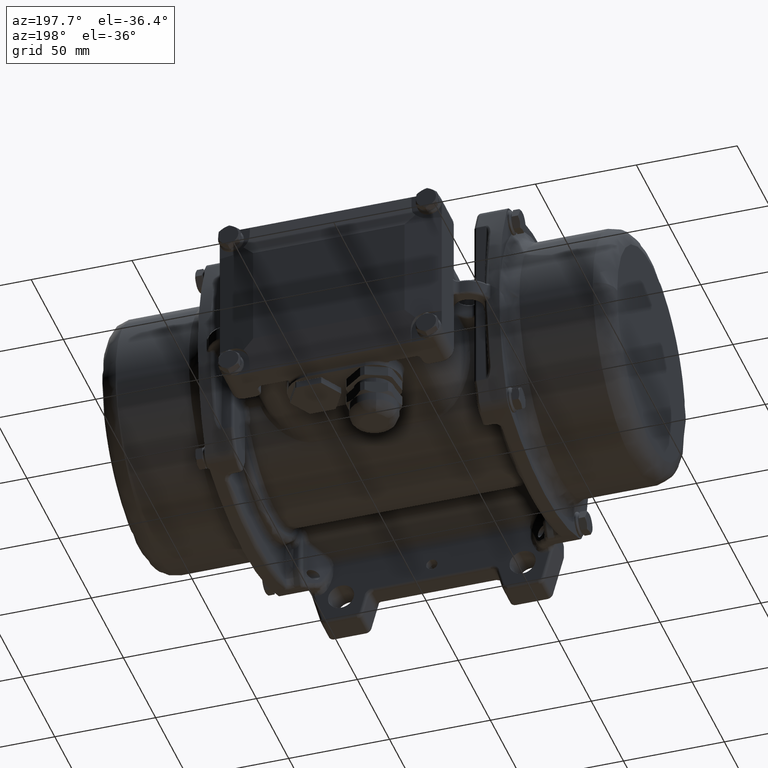
[diagram: clean part render]
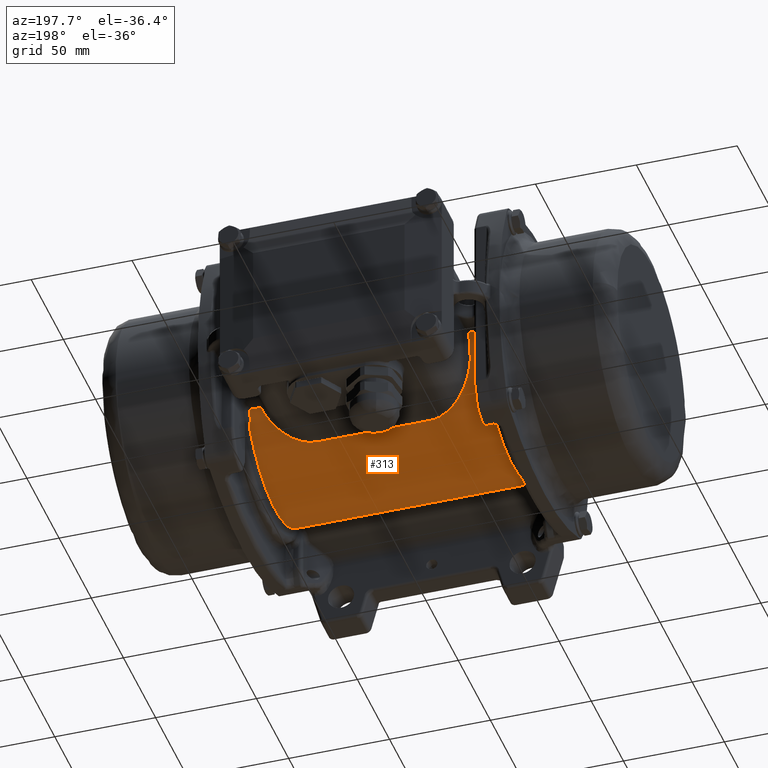
[diagram: same view with one face highlighted and labeled with its STEP entity id]
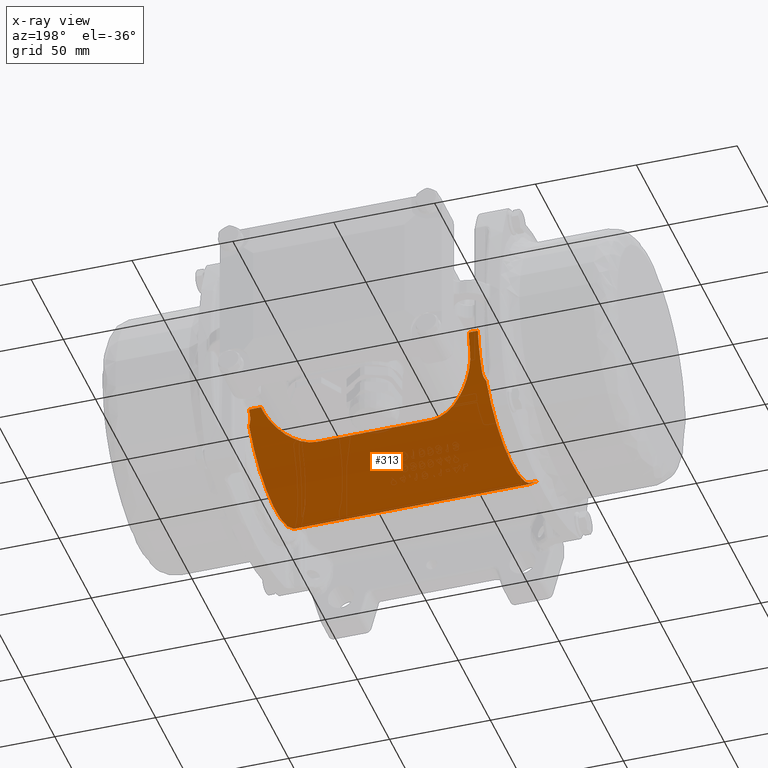
[diagram: x-ray of the same camera — body ghosted, the highlighted face saturated]
A machine part, auxiliary view. The second image highlights one B-rep face of the part: STEP entity #313.
The next image is the same camera in x-ray: the body ghosted, the highlighted face saturated — about 0% of this face is hidden behind the body in this view.
In plain terms, the highlighted cylindrical surface (partial cylindrical patch) has radius 50 mm, axis along (-1, -0, -0).
Its self-contained STEP definition (entity closure, byte-faithful):
#183 = LINE ( 'NONE', #10173, #23171 ) ;
#313 = ADVANCED_FACE ( 'NONE', ( #22295 ), #58801, .T. ) ;
#795 = DIRECTION ( 'NONE',  ( 1.000000000000000000, 0.0000000000000000000, 0.0000000000000000000 ) ) ;
#1679 = CARTESIAN_POINT ( 'NONE',  ( -57.50000000000000700, 49.66604450055753300, -5.769230769230772700 ) ) ;
#2043 = CARTESIAN_POINT ( 'NONE',  ( 57.98832778878339400, 41.55330244159840400, -27.80886954772060400 ) ) ;
#2391 = CARTESIAN_POINT ( 'NONE',  ( -49.46786750420213300, 41.93590435806842700, -27.23318097484833800 ) ) ;
#2492 = DIRECTION ( 'NONE',  ( -1.000000000000000000, -0.0000000000000000000, -0.0000000000000000000 ) ) ;
#2555 = CARTESIAN_POINT ( 'NONE',  ( 57.77486480801098900, 41.96190183794158900, -27.18821396839150100 ) ) ;
#2578 = CARTESIAN_POINT ( 'NONE',  ( 42.25572498046247500, 36.04537702610515700, -34.65177171619174600 ) ) ;
#2665 = CARTESIAN_POINT ( 'NONE',  ( -42.31203734573393400, 36.08195555731531800, -34.61350640377278900 ) ) ;
#2822 = AXIS2_PLACEMENT_3D ( 'NONE', #6173, #24974, #24453 ) ;
#2930 = CARTESIAN_POINT ( 'NONE',  ( -38.02890577499714200, 33.71452270929490400, -36.92331252349004000 ) ) ;
#2978 = EDGE_CURVE ( 'NONE', #66755, #75228, #22992, .T. ) ;
#3126 = CARTESIAN_POINT ( 'NONE',  ( 31.86123097744347600, 31.71528600929236700, -38.65412520567613100 ) ) ;
#3203 = CARTESIAN_POINT ( 'NONE',  ( -33.25851904756403600, 32.01705362535990700, -38.40453545580753300 ) ) ;
#3238 = ORIENTED_EDGE ( 'NONE', *, *, #49634, .T. ) ;
#3393 = CARTESIAN_POINT ( 'NONE',  ( 48.87115605684894600, 41.32704453535111400, -28.15050479908513000 ) ) ;
#3650 = CARTESIAN_POINT ( 'NONE',  ( 45.26726100031910200, 38.17728374424188300, -32.28797935197447800 ) ) ;
#6173 = CARTESIAN_POINT ( 'NONE',  ( -52.99999999999999300, 0.0000000000000000000, 0.0000000000000000000 ) ) ;
#6582 = EDGE_CURVE ( 'NONE', #34324, #70857, #14754, .T. ) ;
#6701 = AXIS2_PLACEMENT_3D ( 'NONE', #8337, #49310, #67603 ) ;
#7080 = CARTESIAN_POINT ( 'NONE',  ( 27.99999999999999600, 31.36075049480852100, -38.94230769230769300 ) ) ;
#7393 = CARTESIAN_POINT ( 'NONE',  ( -58.18527897298220400, 41.26899098580580000, -28.22889566169332900 ) ) ;
#8311 = DIRECTION ( 'NONE',  ( 0.0000000000000000000, 8.881784197001252300E-016, 1.000000000000000000 ) ) ;
#8337 = CARTESIAN_POINT ( 'NONE',  ( -84.50000000000000000, 0.0000000000000000000, 0.0000000000000000000 ) ) ;
#8559 = CARTESIAN_POINT ( 'NONE',  ( -46.21794945096287000, 38.93740409311075000, -31.36768992570225500 ) ) ;
#8742 = CARTESIAN_POINT ( 'NONE',  ( 50.73750674432394400, 43.33576273029007800, -24.97332283799776000 ) ) ;
#8824 = CARTESIAN_POINT ( 'NONE',  ( -40.81004302895662100, 35.15209734466473200, -35.56143989443409500 ) ) ;
#9013 = EDGE_CURVE ( 'NONE', #34252, #76262, #43497, .T. ) ;
#9115 = CARTESIAN_POINT ( 'NONE',  ( -37.99622003739911200, 33.69947203134882600, -36.93704973869088800 ) ) ;
#9305 = CARTESIAN_POINT ( 'NONE',  ( 33.48511667407661500, 32.06449937020436600, -38.36573593299953400 ) ) ;
#9387 = CARTESIAN_POINT ( 'NONE',  ( -47.06276071629821400, 39.65160521683277800, -30.46115813465050000 ) ) ;
#9571 = CARTESIAN_POINT ( 'NONE',  ( 49.99100951707188800, 42.50092780296466800, -26.33775326314511400 ) ) ;
#9836 = CARTESIAN_POINT ( 'NONE',  ( 50.06524923584071700, 42.58307617346383700, -26.20472733435900600 ) ) ;
#10035 = ORIENTED_EDGE ( 'NONE', *, *, #6582, .T. ) ;
#10173 = CARTESIAN_POINT ( 'NONE',  ( -84.50000000000000000, 31.36075049480852800, -38.94230769230768600 ) ) ;
#10599 = EDGE_CURVE ( 'NONE', #75228, #11653, #20384, .T. ) ;
#11653 = VERTEX_POINT ( 'NONE', #1679 ) ;
#12001 = CARTESIAN_POINT ( 'NONE',  ( 57.52318247902827200, 42.81887052015578400, -25.82092348278470300 ) ) ;
#12045 = EDGE_CURVE ( 'NONE', #24924, #20197, #26387, .T. ) ;
#13062 = CARTESIAN_POINT ( 'NONE',  ( -58.25394254713696500, 41.18204375646782700, -28.35566556223257700 ) ) ;
#13733 = DIRECTION ( 'NONE',  ( 1.000000000000000000, 0.0000000000000000000, 0.0000000000000000000 ) ) ;
#14050 = ORIENTED_EDGE ( 'NONE', *, *, #10599, .T. ) ;
#14210 = CARTESIAN_POINT ( 'NONE',  ( -51.13433689566536300, 43.85446317652717600, -24.01677247293787700 ) ) ;
#14460 = CARTESIAN_POINT ( 'NONE',  ( -42.21336700108024300, 36.01867326488359600, -34.67932394199111500 ) ) ;
#14727 = CARTESIAN_POINT ( 'NONE',  ( -41.49740863118155000, 35.56178893941567800, -35.15317696172694900 ) ) ;
#14754 = B_SPLINE_CURVE_WITH_KNOTS ( 'NONE', 3,
 ( #69293, #38652, #12001, #54876, #18149, #61040, #67193, #30444, #73360, #76807, #2555, #45364, #21559, #2043, #51019, #70640, #57793, #69824, #69549, #75750, #63661, #21025, #38915 ),
 .UNSPECIFIED., .F., .F.,
 ( 4, 2, 1, 1, 1, 1, 2, 2, 2, 1, 1, 1, 2, 2, 4 ),
 ( 0.0000000000000000000, 0.2500000000000623900, 0.3750000000000925400, 0.4375000000001095800, 0.4687500000001184100, 0.4843750000001214000, 0.4921875000001217400, 0.5000000000001220100, 0.6250000000001082500, 0.6875000000001000300, 0.7187500000000960300, 0.7343750000000939200, 0.7421875000000909300, 0.7500000000000880400, 1.000000000000000000 ),
 .UNSPECIFIED. ) ;
#14911 = CARTESIAN_POINT ( 'NONE',  ( 51.66000157994336200, 44.56627736835250900, -22.66819184511792100 ) ) ;
#14931 = DIRECTION ( 'NONE',  ( -1.000000000000000000, -0.0000000000000000000, -0.0000000000000000000 ) ) ;
#14998 = CARTESIAN_POINT ( 'NONE',  ( -45.87997399235802500, 38.66256819950283600, -31.70509999988526700 ) ) ;
#15021 = DIRECTION ( 'NONE',  ( 1.000000000000000000, 0.0000000000000000000, 0.0000000000000000000 ) ) ;
#15193 = CARTESIAN_POINT ( 'NONE',  ( 41.59630686049057100, 35.63034336344434600, -35.07892122930059000 ) ) ;
#15275 = CARTESIAN_POINT ( 'NONE',  ( -36.40369206854882800, 33.00813798081532700, -37.55798648817064100 ) ) ;
#15458 = CARTESIAN_POINT ( 'NONE',  ( 40.79480145021933900, 35.14779105176549500, -35.56460481173807200 ) ) ;
#15535 = CARTESIAN_POINT ( 'NONE',  ( -39.76256413225505100, 34.57564019085497600, -36.11919979963694500 ) ) ;
#15721 = CARTESIAN_POINT ( 'NONE',  ( 39.18419548857225700, 34.27519668810755600, -36.40370993960798500 ) ) ;
#15983 = CARTESIAN_POINT ( 'NONE',  ( 39.44265039341785700, 34.40928432860720700, -36.27679876780835100 ) ) ;
#15994 = CARTESIAN_POINT ( 'NONE',  ( 58.80162038658500700, 40.65053817172510300, -29.11243284834028300 ) ) ;
#16200 = ORIENTED_EDGE ( 'NONE', *, *, #64479, .T. ) ;
#17162 = CARTESIAN_POINT ( 'NONE',  ( -58.80162038658508500, -37.12561594097208200, -33.49162045950359400 ) ) ;
#18149 = CARTESIAN_POINT ( 'NONE',  ( 57.63617103468938300, 42.32656628777099400, -26.61826989247197200 ) ) ;
#18394 = CARTESIAN_POINT ( 'NONE',  ( -52.99999999999999300, 49.66604450055753300, -5.769230769230770100 ) ) ;
#18681 = CARTESIAN_POINT ( 'NONE',  ( -58.80162038658498600, 40.65053817172511000, -29.11243284834026600 ) ) ;
#18943 = CARTESIAN_POINT ( 'NONE',  ( -58.68181118160409000, 40.74353357813130600, -28.98258065297054000 ) ) ;
#19281 = CARTESIAN_POINT ( 'NONE',  ( -52.82515782026144500, 46.73660172761973500, -17.77300581005480100 ) ) ;
#19443 = CARTESIAN_POINT ( 'NONE',  ( -58.17905807059187100, 41.27711490381634000, -28.21701472784780800 ) ) ;
#19806 = CARTESIAN_POINT ( 'NONE',  ( -52.95628570215615800, 47.19035811756766200, -16.54777347612903400 ) ) ;
#19984 = CARTESIAN_POINT ( 'NONE',  ( 28.69465863167123800, 31.36078686313616300, -38.94227840441705300 ) ) ;
#20197 = VERTEX_POINT ( 'NONE', #60616 ) ;
#20384 = CIRCLE ( 'NONE', #44287, 49.99999999999999300 ) ;
#20596 = CARTESIAN_POINT ( 'NONE',  ( -50.33487293570851800, 42.87808188612866900, -25.73117527882128300 ) ) ;
#20677 = EDGE_LOOP ( 'NONE', ( #41277, #75003, #49079, #35092, #54907, #10035, #16200, #21662, #54763, #76910, #14050, #3238, #55315 ) ) ;
#20864 = CARTESIAN_POINT ( 'NONE',  ( -48.77065414340793100, 41.23248106395164600, -28.28235477692315700 ) ) ;
#21025 = CARTESIAN_POINT ( 'NONE',  ( 58.56187294227839900, 40.83662914870195900, -28.85258859545968600 ) ) ;
#21044 = CARTESIAN_POINT ( 'NONE',  ( 31.55774993770914300, 31.66092107976764000, -38.69869187729086900 ) ) ;
#21119 = CARTESIAN_POINT ( 'NONE',  ( -42.44973217327024200, 36.17085092474749100, -34.52070425401720400 ) ) ;
#21308 = CARTESIAN_POINT ( 'NONE',  ( 39.66379626202671500, 34.52593759209874200, -36.16572708750452100 ) ) ;
#21391 = CARTESIAN_POINT ( 'NONE',  ( -34.81084924175843300, 32.45364542335992300, -38.03663707332486900 ) ) ;
#21559 = CARTESIAN_POINT ( 'NONE',  ( 57.88940185228333500, 41.72105458575126800, -27.55710945569438400 ) ) ;
#21583 = CARTESIAN_POINT ( 'NONE',  ( 41.86134956676748700, 35.79449765712273300, -34.91148649907048500 ) ) ;
#21662 = ORIENTED_EDGE ( 'NONE', *, *, #52661, .T. ) ;
#21668 = CARTESIAN_POINT ( 'NONE',  ( -29.73835069550392200, 31.36084289151508400, -38.94223328402958400 ) ) ;
#21861 = CARTESIAN_POINT ( 'NONE',  ( 42.67984279636417700, 36.32164172422616100, -34.36197312390275700 ) ) ;
#22121 = CARTESIAN_POINT ( 'NONE',  ( 38.96203670620226200, 34.16308402065798300, -36.50881776100980900 ) ) ;
#22295 = FACE_OUTER_BOUND ( 'NONE', #20677, .T. ) ;
#22326 = CARTESIAN_POINT ( 'NONE',  ( 58.80162038658510700, 0.0000000000000000000, 0.0000000000000000000 ) ) ;
#22992 = B_SPLINE_CURVE_WITH_KNOTS ( 'NONE', 3,
 ( #18681, #18943, #56229, #37627, #49719, #13062, #55972, #25154, #7393, #19443, #62367, #25666, #44028, #32009, #61596, #68499, #36856, #43018, #49208, #55444, #73905, #37108 ),
 .UNSPECIFIED., .F., .F.,
 ( 4, 2, 1, 1, 1, 2, 2, 2, 1, 1, 1, 2, 2, 4 ),
 ( 0.0000000000000000000, 0.1249999999999961400, 0.1874999999999952300, 0.2187499999999949200, 0.2343749999999954800, 0.2421874999999960600, 0.2499999999999966100, 0.3749999999999756900, 0.4374999999999662500, 0.4687499999999623100, 0.4843749999999593700, 0.4921874999999583100, 0.4999999999999573100, 1.000000000000000000 ),
 .UNSPECIFIED. ) ;
#23171 = VECTOR ( 'NONE', #34459, 1000.000000000000000 ) ;
#24453 = DIRECTION ( 'NONE',  ( 0.0000000000000000000, 0.0000000000000000000, 1.000000000000000000 ) ) ;
#24924 = VERTEX_POINT ( 'NONE', #18394 ) ;
#24974 = DIRECTION ( 'NONE',  ( -1.000000000000000000, -0.0000000000000000000, -0.0000000000000000000 ) ) ;
#25154 = CARTESIAN_POINT ( 'NONE',  ( -58.19656932715595600, 41.25438196997294000, -28.25024133597552700 ) ) ;
#25666 = CARTESIAN_POINT ( 'NONE',  ( -58.02157543300914000, 41.49696164016130200, -27.89341898576201100 ) ) ;
#25870 = EDGE_CURVE ( 'NONE', #69996, #34252, #70573, .T. ) ;
#25871 = DIRECTION ( 'NONE',  ( 1.000000000000000000, 0.0000000000000000000, 0.0000000000000000000 ) ) ;
#26387 = CIRCLE ( 'NONE', #2822, 49.99999999999999300 ) ;
#26793 = CARTESIAN_POINT ( 'NONE',  ( -37.19574158968102000, 33.33186937589666600, -37.27232846646026600 ) ) ;
#27048 = CARTESIAN_POINT ( 'NONE',  ( -38.14130479358987500, 33.76655175602129300, -36.87575603943061300 ) ) ;
#27234 = CARTESIAN_POINT ( 'NONE',  ( 35.82602698682823200, 32.80424295809448400, -37.73439315359782900 ) ) ;
#27316 = CARTESIAN_POINT ( 'NONE',  ( -48.27422519689751800, 40.74586300407565200, -28.98889750806852200 ) ) ;
#27432 = VERTEX_POINT ( 'NONE', #58557 ) ;
#27505 = CARTESIAN_POINT ( 'NONE',  ( 42.45211552587983300, 36.17197834159583200, -34.51977354935892400 ) ) ;
#27581 = CARTESIAN_POINT ( 'NONE',  ( -44.61054336426092000, 37.66937481520174200, -32.88508266460171800 ) ) ;
#27762 = CARTESIAN_POINT ( 'NONE',  ( 42.87582091129651500, 36.45194526739211200, -34.22362629347073000 ) ) ;
#27991 = EDGE_CURVE ( 'NONE', #76262, #34324, #51927, .T. ) ;
#28041 = CARTESIAN_POINT ( 'NONE',  ( 44.92819440474127600, 37.91477941427373100, -32.59748558088431700 ) ) ;
#28447 = CARTESIAN_POINT ( 'NONE',  ( 58.80162038658510700, -37.12561594097208200, -33.49162045950359400 ) ) ;
#28505 = DIRECTION ( 'NONE',  ( -1.000000000000000000, -0.0000000000000000000, -0.0000000000000000000 ) ) ;
#29301 = CARTESIAN_POINT ( 'NONE',  ( -57.50000000000000700, 43.26923076923075900, -25.05541196306805300 ) ) ;
#30444 = CARTESIAN_POINT ( 'NONE',  ( 57.75816477557834400, 42.00053001421468200, -27.12851835055008100 ) ) ;
#31852 = CARTESIAN_POINT ( 'NONE',  ( -52.48600565455889500, 45.93258627178849500, -19.75348876390548700 ) ) ;
#32009 = CARTESIAN_POINT ( 'NONE',  ( -57.87575995097257200, 41.74976349806176800, -27.51320676796766300 ) ) ;
#32024 = CARTESIAN_POINT ( 'NONE',  ( 29.38904479887154200, 31.39537300377518700, -38.91450136723642600 ) ) ;
#32637 = CARTESIAN_POINT ( 'NONE',  ( -52.30721355821826500, 45.57632743153691700, -20.57948414995432900 ) ) ;
#33068 = CARTESIAN_POINT ( 'NONE',  ( 36.09372550960451800, 32.90368609558559100, -37.64767631160800900 ) ) ;
#33138 = CARTESIAN_POINT ( 'NONE',  ( -48.82663497549938800, 41.28771580673933500, -28.20166459447935400 ) ) ;
#33330 = CARTESIAN_POINT ( 'NONE',  ( 49.36880889754365900, 41.83517991737927800, -27.38451394306746400 ) ) ;
#33410 = CARTESIAN_POINT ( 'NONE',  ( -38.29840508862045600, 33.84005220137411400, -36.80837671356056300 ) ) ;
#33591 = CARTESIAN_POINT ( 'NONE',  ( 39.57169526052753400, 34.47714125420945000, -36.21226307920329600 ) ) ;
#33669 = CARTESIAN_POINT ( 'NONE',  ( -33.38404907142740500, 32.04847685554705100, -38.37832210156640400 ) ) ;
#33851 = CARTESIAN_POINT ( 'NONE',  ( 45.49172780706197000, 38.35287630334022400, -32.07920641135888900 ) ) ;
#33928 = CARTESIAN_POINT ( 'NONE',  ( -34.21098291122530800, 32.27324137347337500, -38.18958112532494200 ) ) ;
#34109 = CARTESIAN_POINT ( 'NONE',  ( 43.88023160698278200, 37.14024664581317800, -33.47941311659897000 ) ) ;
#34252 = VERTEX_POINT ( 'NONE', #66507 ) ;
#34324 = VERTEX_POINT ( 'NONE', #61922 ) ;
#34459 = DIRECTION ( 'NONE',  ( 1.000000000000000000, 0.0000000000000000000, 0.0000000000000000000 ) ) ;
#35092 = ORIENTED_EDGE ( 'NONE', *, *, #9013, .T. ) ;
#36856 = CARTESIAN_POINT ( 'NONE',  ( -57.79155857800694200, 41.92445801177669300, -27.24591718622015800 ) ) ;
#37108 = CARTESIAN_POINT ( 'NONE',  ( -57.50000000000000700, 43.26923076923075900, -25.05541196306805300 ) ) ;
#37627 = CARTESIAN_POINT ( 'NONE',  ( -58.41272571401960100, 41.00145582198978600, -28.61623826286220100 ) ) ;
#38233 = EDGE_CURVE ( 'NONE', #20197, #27432, #49808, .T. ) ;
#38250 = CARTESIAN_POINT ( 'NONE',  ( -52.54958801659792300, 46.06278401106899200, -19.44841995296059200 ) ) ;
#38501 = CARTESIAN_POINT ( 'NONE',  ( -51.27030731498087600, 44.03039137466496600, -23.69392141327739100 ) ) ;
#38652 = CARTESIAN_POINT ( 'NONE',  ( 57.50000347061357800, 43.04255385015310500, -25.44686974217330900 ) ) ;
#38915 = CARTESIAN_POINT ( 'NONE',  ( 58.80162038658500700, 40.65053817172510300, -29.11243284834028300 ) ) ;
#39016 = CARTESIAN_POINT ( 'NONE',  ( -48.93620692055680600, 41.39655752900355200, -28.04165450157108100 ) ) ;
#39213 = CARTESIAN_POINT ( 'NONE',  ( 32.12337247730926000, 31.76518426198462200, -38.61312186700411100 ) ) ;
#39293 = CARTESIAN_POINT ( 'NONE',  ( -43.41604240355119500, 36.81700887508527800, -33.83195657033822100 ) ) ;
#39556 = CARTESIAN_POINT ( 'NONE',  ( -42.25285750810031300, 36.04397096780823500, -34.65303002203119600 ) ) ;
#39751 = CARTESIAN_POINT ( 'NONE',  ( 47.40484307344520000, 39.93675609477621400, -30.10793870806392300 ) ) ;
#39838 = CARTESIAN_POINT ( 'NONE',  ( -33.91068542160353200, 32.18701923366280200, -38.26231316693891700 ) ) ;
#40028 = CARTESIAN_POINT ( 'NONE',  ( 46.59232764560344000, 39.23083622924890800, -31.01859121957199500 ) ) ;
#40049 = DIRECTION ( 'NONE',  ( 0.0000000000000000000, 0.0000000000000000000, 1.000000000000000000 ) ) ;
#40298 = CARTESIAN_POINT ( 'NONE',  ( 44.58202865277309700, 37.65514411032905400, -32.89616053457129400 ) ) ;
#40575 = CIRCLE ( 'NONE', #46416, 49.99999999999999300 ) ;
#41277 = ORIENTED_EDGE ( 'NONE', *, *, #38233, .T. ) ;
#42603 = AXIS2_PLACEMENT_3D ( 'NONE', #45959, #14931, #40049 ) ;
#43018 = CARTESIAN_POINT ( 'NONE',  ( -57.78492401860604100, 41.93919086864985200, -27.22323368342838300 ) ) ;
#43497 = LINE ( 'NONE', #74228, #62724 ) ;
#44028 = CARTESIAN_POINT ( 'NONE',  ( -57.92264846691513500, 41.66465770491144800, -27.64175212161188400 ) ) ;
#44187 = CARTESIAN_POINT ( 'NONE',  ( -57.50000000000000700, 0.0000000000000000000, 0.0000000000000000000 ) ) ;
#44287 = AXIS2_PLACEMENT_3D ( 'NONE', #44187, #13733, #56639 ) ;
#44407 = CARTESIAN_POINT ( 'NONE',  ( -52.09962426728124300, 45.22195847296023900, -21.34678995748320700 ) ) ;
#44963 = CARTESIAN_POINT ( 'NONE',  ( -58.80162038658508500, 0.0000000000000000000, 0.0000000000000000000 ) ) ;
#45199 = CARTESIAN_POINT ( 'NONE',  ( -46.01567178069330300, 38.77249888326215900, -31.57056977837695300 ) ) ;
#45364 = CARTESIAN_POINT ( 'NONE',  ( 57.83032678584285000, 41.83623690818033900, -27.38204797439869900 ) ) ;
#45377 = VERTEX_POINT ( 'NONE', #28447 ) ;
#45387 = CARTESIAN_POINT ( 'NONE',  ( 49.61017609959360200, 42.08721764432098000, -26.99693618917394700 ) ) ;
#45470 = CARTESIAN_POINT ( 'NONE',  ( -46.68104759595870200, 39.32215937447810500, -30.88667282569290900 ) ) ;
#45751 = CARTESIAN_POINT ( 'NONE',  ( -38.00640939102814300, 33.70415936850095300, -36.93277258053565500 ) ) ;
#45941 = CARTESIAN_POINT ( 'NONE',  ( 31.99128470135768900, 31.73977091777943500, -38.63401425330376100 ) ) ;
#45959 = CARTESIAN_POINT ( 'NONE',  ( 57.50000000000000700, 0.0000000000000000000, 0.0000000000000000000 ) ) ;
#46023 = CARTESIAN_POINT ( 'NONE',  ( -33.23538240149034100, 32.01132238823543500, -38.40931285641577400 ) ) ;
#46205 = CARTESIAN_POINT ( 'NONE',  ( 36.03080276271643400, 32.88008476272931100, -37.66829077157054000 ) ) ;
#46416 = AXIS2_PLACEMENT_3D ( 'NONE', #44963, #15021, #8311 ) ;
#46483 = CARTESIAN_POINT ( 'NONE',  ( 36.71958198956924200, 33.13981602924081900, -37.44122196406549100 ) ) ;
#47236 = CARTESIAN_POINT ( 'NONE',  ( 57.50000000000000700, 44.56627736835183400, -22.66819184511926400 ) ) ;
#47416 = EDGE_CURVE ( 'NONE', #27432, #69996, #183, .T. ) ;
#49079 = ORIENTED_EDGE ( 'NONE', *, *, #25870, .T. ) ;
#49208 = CARTESIAN_POINT ( 'NONE',  ( -57.78126950510319700, 41.94739388322147300, -27.21059154251643600 ) ) ;
#49310 = DIRECTION ( 'NONE',  ( -1.000000000000000000, -0.0000000000000000000, -0.0000000000000000000 ) ) ;
#49634 = EDGE_CURVE ( 'NONE', #11653, #24924, #66177, .T. ) ;
#49674 = VECTOR ( 'NONE', #2492, 1000.000000000000000 ) ;
#49719 = CARTESIAN_POINT ( 'NONE',  ( -58.33713640944075300, 41.08299130548066800, -28.49920729535819300 ) ) ;
#49808 = B_SPLINE_CURVE_WITH_KNOTS ( 'NONE', 3,
 ( #75587, #50855, #19806, #19281, #74524, #69391, #38250, #63238, #68587, #31852, #32637, #44407, #57112, #75316, #38501, #14210, #62208, #76114, #51959, #51689, #20596, #75846, #2391, #69922, #39016, #33138, #20864, #27316, #52235, #9387, #45470, #8559, #45199, #14998, #63498, #51400, #27581, #63756, #39293, #57637, #57899, #21119, #2665, #39556, #14460, #64291, #14727, #8824, #15535, #64037, #70748, #70198, #33410, #27048, #76388, #2930, #45751, #9115, #26793, #15275, #58163, #21391, #33928, #39838, #70478, #33669, #76644, #3203, #46023, #58442, #21668, #51123 ),
 .UNSPECIFIED., .F., .F.,
 ( 4, 2, 1, 1, 1, 2, 2, 2, 1, 1, 1, 2, 2, 2, 1, 1, 2, 2, 2, 1, 1, 2, 2, 2, 2, 1, 1, 1, 2, 2, 2, 2, 1, 1, 1, 1, 2, 2, 2, 2, 1, 1, 1, 2, 2, 4 ),
 ( 0.0000000000000000000, 0.06250000000000767400, 0.09375000000001157400, 0.1093750000000135300, 0.1171875000000144500, 0.1210937500000147400, 0.1250000000000150400, 0.1875000000000200700, 0.2187500000000227000, 0.2343750000000240100, 0.2421875000000244500, 0.2460937500000246700, 0.2500000000000248700, 0.3125000000000279200, 0.3437500000000292500, 0.3593750000000298100, 0.3671875000000299200, 0.3750000000000300300, 0.4375000000000303600, 0.4687500000000307000, 0.4843750000000309800, 0.4921875000000308600, 0.5000000000000306400, 0.5625000000000298600, 0.5937500000000296400, 0.6093750000000296400, 0.6171875000000298600, 0.6210937500000299800, 0.6230468750000300900, 0.6250000000000302000, 0.6875000000000220900, 0.7187500000000184300, 0.7343750000000164300, 0.7421875000000153200, 0.7460937500000148800, 0.7480468750000146500, 0.7490234375000145400, 0.7500000000000144300, 0.8125000000000076600, 0.8437500000000041100, 0.8593750000000023300, 0.8671875000000016700, 0.8710937500000015500, 0.8730468750000013300, 0.8750000000000010000, 1.000000000000000000 ),
 .UNSPECIFIED. ) ;
#50855 = CARTESIAN_POINT ( 'NONE',  ( -52.99999666408069700, 47.47001892703959000, -15.72708196554764200 ) ) ;
#51019 = CARTESIAN_POINT ( 'NONE',  ( 58.04036909124322800, 41.47068117481110500, -27.93204142610449400 ) ) ;
#51123 = CARTESIAN_POINT ( 'NONE',  ( -27.99999999999999600, 31.36075049480852800, -38.94230769230769300 ) ) ;
#51400 = CARTESIAN_POINT ( 'NONE',  ( -45.18631945236073500, 38.10730759312254900, -32.37780469502577300 ) ) ;
#51600 = CARTESIAN_POINT ( 'NONE',  ( 51.24465508686412100, 43.97108204461913800, -23.83836192604387000 ) ) ;
#51689 = CARTESIAN_POINT ( 'NONE',  ( -50.68119139564948500, 43.28372975402579900, -25.04336520009109900 ) ) ;
#51871 = CARTESIAN_POINT ( 'NONE',  ( 35.53920154825068100, 32.70070975897114400, -37.82425240802131600 ) ) ;
#51927 = CIRCLE ( 'NONE', #42603, 49.99999999999999300 ) ;
#51959 = CARTESIAN_POINT ( 'NONE',  ( -51.01362115831614800, 43.70115091198680100, -24.29427820509758700 ) ) ;
#52154 = CARTESIAN_POINT ( 'NONE',  ( 38.51688446574498700, 33.94269930905815600, -36.71421386944729900 ) ) ;
#52235 = CARTESIAN_POINT ( 'NONE',  ( -47.80588276124420600, 40.30919450214318500, -29.59217199347441300 ) ) ;
#52432 = CARTESIAN_POINT ( 'NONE',  ( 36.07174897395546500, 32.89542229896329000, -37.65489736314149400 ) ) ;
#52661 = EDGE_CURVE ( 'NONE', #45377, #59446, #71814, .T. ) ;
#52700 = CARTESIAN_POINT ( 'NONE',  ( 50.10112216532227300, 42.62300491892559500, -26.13973827810061900 ) ) ;
#53167 = DIRECTION ( 'NONE',  ( 0.0000000000000000000, 0.0000000000000000000, 1.000000000000000000 ) ) ;
#54763 = ORIENTED_EDGE ( 'NONE', *, *, #70458, .T. ) ;
#54876 = CARTESIAN_POINT ( 'NONE',  ( 57.59271429835210700, 42.48962323554611900, -26.35670422933718300 ) ) ;
#54907 = ORIENTED_EDGE ( 'NONE', *, *, #27991, .T. ) ;
#55315 = ORIENTED_EDGE ( 'NONE', *, *, #12045, .T. ) ;
#55444 = CARTESIAN_POINT ( 'NONE',  ( -57.59279692365930000, 42.37420059710566300, -26.55228541867364100 ) ) ;
#55972 = CARTESIAN_POINT ( 'NONE',  ( -58.21359403091131000, 41.23253666306014500, -28.28213351948824800 ) ) ;
#56229 = CARTESIAN_POINT ( 'NONE',  ( -58.56961136284008500, 40.84300475818714200, -28.84237940393644500 ) ) ;
#56579 = CARTESIAN_POINT ( 'NONE',  ( -58.80162038658498600, 40.65053817172511000, -29.11243284834026600 ) ) ;
#56639 = DIRECTION ( 'NONE',  ( 0.0000000000000000000, 0.0000000000000000000, 1.000000000000000000 ) ) ;
#56956 = CARTESIAN_POINT ( 'NONE',  ( -84.50000000000000000, -37.12561594097207500, -33.49162045950360100 ) ) ;
#57112 = CARTESIAN_POINT ( 'NONE',  ( -51.72926876577457000, 44.66284452803258600, -22.48128246051702900 ) ) ;
#57637 = CARTESIAN_POINT ( 'NONE',  ( -42.95557781446961300, 36.50472467841375100, -34.16765185265954600 ) ) ;
#57793 = CARTESIAN_POINT ( 'NONE',  ( 58.13933751906558500, 41.33008415746507300, -28.13938712395610900 ) ) ;
#57821 = CARTESIAN_POINT ( 'NONE',  ( 34.80075025633431100, 32.45176097026395500, -38.03819148531255900 ) ) ;
#57899 = CARTESIAN_POINT ( 'NONE',  ( -42.72355598724090700, 36.34968749943584500, -34.33276880279871800 ) ) ;
#58085 = CARTESIAN_POINT ( 'NONE',  ( 34.47211883435310400, 32.34946158194082200, -38.12515952417977900 ) ) ;
#58163 = CARTESIAN_POINT ( 'NONE',  ( -35.20978859716653600, 32.58453136802125300, -37.92470429717253900 ) ) ;
#58363 = CARTESIAN_POINT ( 'NONE',  ( 42.84194047641145900, 36.42932250778163400, -34.24770724275457900 ) ) ;
#58442 = CARTESIAN_POINT ( 'NONE',  ( -31.47444772844663100, 31.57841568180083100, -38.76998141962361200 ) ) ;
#58557 = CARTESIAN_POINT ( 'NONE',  ( -27.99999999999999600, 31.36075049480852800, -38.94230769230769300 ) ) ;
#58635 = CARTESIAN_POINT ( 'NONE',  ( 38.21900340448370100, 33.80089829334736600, -36.84471937959371200 ) ) ;
#58801 = CYLINDRICAL_SURFACE ( 'NONE', #6701, 49.99999999999999300 ) ;
#58902 = CARTESIAN_POINT ( 'NONE',  ( 32.82563804144838600, 31.90379693585303000, -38.49904269778487300 ) ) ;
#59053 = AXIS2_PLACEMENT_3D ( 'NONE', #22326, #28505, #53167 ) ;
#59446 = VERTEX_POINT ( 'NONE', #17162 ) ;
#60616 = CARTESIAN_POINT ( 'NONE',  ( -52.99999999999999300, 47.72709261857969700, -14.90384615384615200 ) ) ;
#61040 = CARTESIAN_POINT ( 'NONE',  ( 57.70207950709826900, 42.13943747111017800, -26.91253929533703700 ) ) ;
#61596 = CARTESIAN_POINT ( 'NONE',  ( -57.82556287480560500, 41.85117205489973500, -27.35844280617198600 ) ) ;
#61922 = CARTESIAN_POINT ( 'NONE',  ( 57.50000000000000700, 43.26923076923076600, -25.05541196306805300 ) ) ;
#62066 = CARTESIAN_POINT ( 'NONE',  ( -84.50000000000000000, 49.66604450055752600, -5.769230769230771800 ) ) ;
#62208 = CARTESIAN_POINT ( 'NONE',  ( -51.07468171275881000, 43.77844190110055000, -24.15472584622423500 ) ) ;
#62367 = CARTESIAN_POINT ( 'NONE',  ( -58.09439332268360800, 41.38851966127364100, -28.05396555683550400 ) ) ;
#62724 = VECTOR ( 'NONE', #795, 1000.000000000000000 ) ;
#62898 = CARTESIAN_POINT ( 'NONE',  ( 30.43021535296561800, 31.49874325671518700, -38.83080142006141200 ) ) ;
#63238 = CARTESIAN_POINT ( 'NONE',  ( -52.51834326783588100, 45.99827330543775600, -19.60004774770991900 ) ) ;
#63498 = CARTESIAN_POINT ( 'NONE',  ( -45.81259315921801100, 38.60831876780860500, -31.77114043533548600 ) ) ;
#63661 = CARTESIAN_POINT ( 'NONE',  ( 58.35260982118185100, 41.04868084406336900, -28.55135351736279900 ) ) ;
#63756 = CARTESIAN_POINT ( 'NONE',  ( -43.71824670910446300, 37.02814629786533400, -33.60087791933928300 ) ) ;
#63952 = CARTESIAN_POINT ( 'NONE',  ( 35.29314344213963800, 32.61593906601233100, -37.89730490718680000 ) ) ;
#64037 = CARTESIAN_POINT ( 'NONE',  ( -39.41066608446048000, 34.38982352109369600, -36.29601022308867200 ) ) ;
#64213 = CARTESIAN_POINT ( 'NONE',  ( 32.07798505533849500, 31.75635724735455800, -38.62038179013752200 ) ) ;
#64291 = CARTESIAN_POINT ( 'NONE',  ( -42.19495844428809100, 36.00690194540025100, -34.69154637537105400 ) ) ;
#64479 = EDGE_CURVE ( 'NONE', #70857, #45377, #77048, .T. ) ;
#64488 = CARTESIAN_POINT ( 'NONE',  ( 40.25196145478430100, 34.83931768651250100, -35.86623871479550700 ) ) ;
#64746 = CARTESIAN_POINT ( 'NONE',  ( 49.87871753663144100, 42.37741434886373100, -26.53671645461760800 ) ) ;
#65012 = CARTESIAN_POINT ( 'NONE',  ( 31.29758501690641000, 31.61907988671259400, -38.73286579150440900 ) ) ;
#66177 = LINE ( 'NONE', #62066, #68982 ) ;
#66507 = CARTESIAN_POINT ( 'NONE',  ( 51.66000157994336200, 44.56627736835250900, -22.66819184511792100 ) ) ;
#66755 = VERTEX_POINT ( 'NONE', #56579 ) ;
#67193 = CARTESIAN_POINT ( 'NONE',  ( 57.73883597997330200, 42.04669238026073000, -27.05697355920410600 ) ) ;
#67603 = DIRECTION ( 'NONE',  ( 0.0000000000000000000, 0.0000000000000000000, 1.000000000000000000 ) ) ;
#68499 = CARTESIAN_POINT ( 'NONE',  ( -57.80159088483034000, 41.90239520655085000, -27.27985605283510400 ) ) ;
#68587 = CARTESIAN_POINT ( 'NONE',  ( -52.49717196949966100, 45.95508641792471100, -19.70109263760074500 ) ) ;
#68773 = CARTESIAN_POINT ( 'NONE',  ( 27.99999999999999600, 31.36075049480852100, -38.94230769230769300 ) ) ;
#68982 = VECTOR ( 'NONE', #25871, 1000.000000000000000 ) ;
#69293 = CARTESIAN_POINT ( 'NONE',  ( 57.50000000000000700, 43.26923076923076600, -25.05541196306805300 ) ) ;
#69391 = CARTESIAN_POINT ( 'NONE',  ( -52.61890703918031400, 46.21142236661442100, -19.09420567452404800 ) ) ;
#69549 = CARTESIAN_POINT ( 'NONE',  ( 58.16389516342853500, 41.29711998137275900, -28.18772814103041200 ) ) ;
#69824 = CARTESIAN_POINT ( 'NONE',  ( 58.15403987650575600, 41.31028893410026400, -28.16842495933503100 ) ) ;
#69845 = CARTESIAN_POINT ( 'NONE',  ( 48.51949624759278400, 40.98287661659384900, -28.64894307622166300 ) ) ;
#69922 = CARTESIAN_POINT ( 'NONE',  ( -49.09899717927437000, 41.55935552042874500, -27.80082420058818800 ) ) ;
#69996 = VERTEX_POINT ( 'NONE', #7080 ) ;
#70116 = CARTESIAN_POINT ( 'NONE',  ( 39.62696107815028800, 34.50639602678517500, -36.18437253323623500 ) ) ;
#70198 = CARTESIAN_POINT ( 'NONE',  ( -38.61170713607586400, 33.98933410228122700, -36.67082083614219800 ) ) ;
#70392 = CARTESIAN_POINT ( 'NONE',  ( 37.32202151783047800, 33.39146308478815000, -37.21755606498239600 ) ) ;
#70458 = EDGE_CURVE ( 'NONE', #59446, #66755, #40575, .T. ) ;
#70478 = CARTESIAN_POINT ( 'NONE',  ( -33.55970078275638700, 32.09347631930186400, -38.34071960758276300 ) ) ;
#70573 = B_SPLINE_CURVE_WITH_KNOTS ( 'NONE', 3,
 ( #68773, #19984, #32024, #62898, #76831, #65012, #21044, #3126, #45941, #64213, #39213, #58902, #9305, #58085, #57821, #63952, #51871, #27234, #77109, #46205, #52432, #33068, #46483, #70392, #58635, #52154, #22121, #15721, #15983, #33591, #70116, #21308, #76035, #64488, #15458, #15193, #21583, #2578, #27505, #21861, #70934, #58363, #27762, #70670, #34109, #40298, #28041, #3650, #33851, #76566, #40028, #39751, #69845, #3393, #33330, #45387, #64746, #9571, #9836, #52700, #8742, #51600, #14911 ),
 .UNSPECIFIED., .F., .F.,
 ( 4, 2, 2, 1, 1, 2, 2, 2, 2, 1, 1, 1, 2, 2, 2, 2, 1, 1, 1, 2, 2, 2, 2, 1, 1, 2, 2, 2, 1, 2, 2, 2, 2, 1, 1, 2, 2, 4 ),
 ( 0.0000000000000000000, 0.06250000000000738300, 0.09375000000001124100, 0.1093750000000128200, 0.1171875000000133100, 0.1210937500000138100, 0.1250000000000142900, 0.1875000000000245900, 0.2187500000000294500, 0.2343750000000318900, 0.2421875000000331700, 0.2460937500000338100, 0.2480468750000341400, 0.2500000000000344200, 0.3125000000000395800, 0.3437500000000423000, 0.3593750000000437400, 0.3671875000000444100, 0.3710937500000445800, 0.3730468750000443500, 0.3750000000000441300, 0.4375000000000317500, 0.4687500000000255900, 0.4843750000000227600, 0.4921875000000214300, 0.4960937500000208700, 0.5000000000000202100, 0.5625000000000182100, 0.5937500000000173200, 0.6093750000000167600, 0.6250000000000163200, 0.7500000000000156500, 0.8125000000000152100, 0.8437500000000152100, 0.8593750000000151000, 0.8671875000000147700, 0.8750000000000143200, 1.000000000000000000 ),
 .UNSPECIFIED. ) ;
#70640 = CARTESIAN_POINT ( 'NONE',  ( 58.10559602898025100, 41.37656441361765000, -28.07105001884582100 ) ) ;
#70670 = CARTESIAN_POINT ( 'NONE',  ( 43.39974618731736900, 36.80282161447710400, -33.84945194457783700 ) ) ;
#70748 = CARTESIAN_POINT ( 'NONE',  ( -38.87871138942757900, 34.12115510935537100, -36.54807592726250200 ) ) ;
#70857 = VERTEX_POINT ( 'NONE', #15994 ) ;
#70934 = CARTESIAN_POINT ( 'NONE',  ( 42.77714126246403500, 36.38619571637721600, -34.29352345634497100 ) ) ;
#71814 = LINE ( 'NONE', #56956, #49674 ) ;
#73360 = CARTESIAN_POINT ( 'NONE',  ( 57.76665223637362300, 41.98079174875095300, -27.15903662743435400 ) ) ;
#73905 = CARTESIAN_POINT ( 'NONE',  ( -57.50000694801692400, 42.81565481900117500, -25.83871109583764200 ) ) ;
#74228 = CARTESIAN_POINT ( 'NONE',  ( -84.50000000000000000, 44.56627736835182700, -22.66819184511925700 ) ) ;
#74524 = CARTESIAN_POINT ( 'NONE',  ( -52.74320351956214400, 46.50115895857657500, -18.38416959918796000 ) ) ;
#75003 = ORIENTED_EDGE ( 'NONE', *, *, #47416, .T. ) ;
#75228 = VERTEX_POINT ( 'NONE', #29301 ) ;
#75316 = CARTESIAN_POINT ( 'NONE',  ( -51.52934812374594700, 44.37639832359033000, -23.04441325239162500 ) ) ;
#75587 = CARTESIAN_POINT ( 'NONE',  ( -52.99999999999999300, 47.72709261857969700, -14.90384615384615200 ) ) ;
#75750 = CARTESIAN_POINT ( 'NONE',  ( 58.16824418586146800, 41.29134637897016100, -28.19618563069842300 ) ) ;
#75846 = CARTESIAN_POINT ( 'NONE',  ( -49.76523016200323500, 42.25277081667442000, -26.73685060322798500 ) ) ;
#76035 = CARTESIAN_POINT ( 'NONE',  ( 39.68338893376103700, 34.53635601975586400, -36.15577788048124600 ) ) ;
#76114 = CARTESIAN_POINT ( 'NONE',  ( -51.03460444725288900, 43.72762286339234800, -24.24660295198519900 ) ) ;
#76262 = VERTEX_POINT ( 'NONE', #47236 ) ;
#76388 = CARTESIAN_POINT ( 'NONE',  ( -38.06264232824882800, 33.73008828914851200, -36.90909766380801200 ) ) ;
#76566 = CARTESIAN_POINT ( 'NONE',  ( 45.60401580118358600, 38.44164098604854000, -31.97278793259129900 ) ) ;
#76644 = CARTESIAN_POINT ( 'NONE',  ( -33.30873561116381900, 32.02957208953719000, -38.39409561621017300 ) ) ;
#76807 = CARTESIAN_POINT ( 'NONE',  ( 57.77235580829271600, 41.96764310239225200, -27.17935022793118400 ) ) ;
#76831 = CARTESIAN_POINT ( 'NONE',  ( 30.77720408821256000, 31.54177491436312100, -38.79588710767767900 ) ) ;
#76910 = ORIENTED_EDGE ( 'NONE', *, *, #2978, .T. ) ;
#77048 = CIRCLE ( 'NONE', #59053, 49.99999999999999300 ) ;
#77109 = CARTESIAN_POINT ( 'NONE',  ( 35.96937911814569600, 32.85716021962167600, -37.68829710120311900 ) ) ;